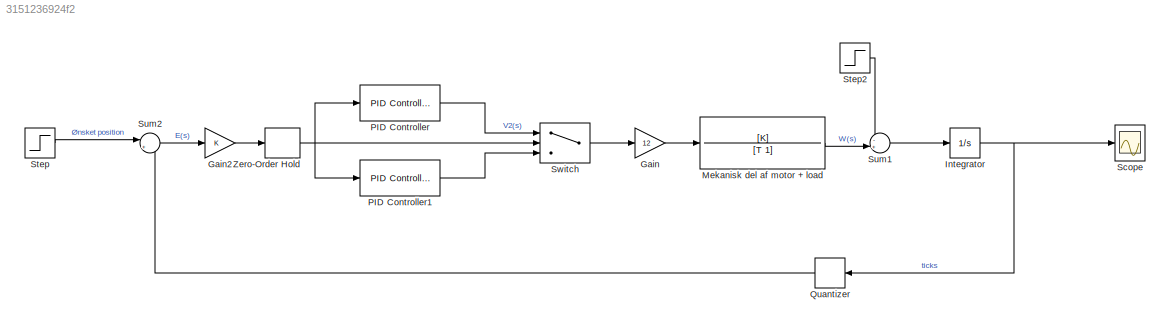
MODEL slx_3151236924f2
KIND model
CONFIG AbsTol = auto
CONFIG FixedStep = auto
CONFIG MaxStep = auto
CONFIG MinStep = auto
CONFIG RelTol = 1e-3
CONFIG SampleTimeConstraint = Unconstrained
CONFIG Solver = VariableStepAuto
CONFIG SolverMode = Auto
CONFIG SolverName = VariableStepAuto
CONFIG StartTime = 0.0
CONFIG StopTime = 3.5
BLOCK [Gain] Gain
  Gain = 12
  OutDataTypeStr = Inherit: Inherit via internal rule
  ParamDataTypeStr = Inherit: Inherit via internal rule
  SaturateOnIntegerOverflow = off
BLOCK [Gain] Gain2
  OutDataTypeStr = Inherit: Inherit via internal rule
  ParamDataTypeStr = Inherit: Inherit via internal rule
  SaturateOnIntegerOverflow = off
BLOCK [Integrator] Integrator
  Ports = [1, 1]
BLOCK [TransferFcn] Mekanisk del af motor + load 
  Denominator = [T 1]
  Numerator = [K]
BLOCK [Reference] PID Controller  REF=simulink/Continuous/PID Controller
  Ports = [1, 1]
  SourceBlock = simulink/Continuous/PID Controller
  SourceType = PID 1dof
BLOCK [Reference] PID Controller1  REF=simulink/Continuous/PID Controller
  Ports = [1, 1]
  SourceBlock = simulink/Continuous/PID Controller
  SourceType = PID 1dof
BLOCK [Quantizer] Quantizer
  QuantizationInterval = 1
BLOCK [Scope] Scope
  Ports = [1]
  ScopeSpecificationString = Simulink.scopes.TimeScopeBlockCfg('CurrentConfiguration', extmgr.ConfigurationSet(extmgr.Configuration('Core','General UI',true,'FigureColor',[1 1 1]),extmgr.Configuration('Core','Source UI',true),extmgr.Configuration('Sources','WiredSimulink',true),extmgr.Configuration('Visuals','Time Domain',true,'SerializedDisplays',{struct('MinYLimReal','0','MaxYLimReal','600','YLabelReal','','MinYLimMag','0.0...<+1538ch>
BLOCK [Step] Step 
  After = 540
  SampleTime = 0
  Time = 0
BLOCK [Step] Step2
  After = 0
  SampleTime = 0
  Time = 5
BLOCK [Sum] Sum1
  IconShape = round
  InputSameDT = off
  Inputs = -+|
  OutDataTypeStr = Inherit: Inherit via internal rule
  Ports = [2, 1]
  SaturateOnIntegerOverflow = off
BLOCK [Sum] Sum2
  IconShape = round
  InputSameDT = off
  Inputs = |+-
  OutDataTypeStr = Inherit: Inherit via internal rule
  Ports = [2, 1]
  SaturateOnIntegerOverflow = off
BLOCK [Switch] Switch
  Criteria = u2 > Threshold
  InputSameDT = off
  SaturateOnIntegerOverflow = off
BLOCK [ZeroOrderHold] Zero-Order Hold
  SampleTime = 0.005
LINE Gain2:1 -> Zero-Order Hold:1
LINE Gain:1 -> Mekanisk del af motor + load :1
NET Integrator:1 -> Quantizer:1, Scope:1
LINE Mekanisk del af motor + load :1 -> Sum1:2
LINE PID Controller1:1 -> Switch:3
LINE PID Controller:1 -> Switch:1
LINE Quantizer:1 -> Sum2:2
LINE Step :1 -> Sum2:1
LINE Step2:1 -> Sum1:1
LINE Sum1:1 -> Integrator:1
LINE Sum2:1 -> Gain2:1
LINE Switch:1 -> Gain:1
NET Zero-Order Hold:1 -> PID Controller1:1, PID Controller:1, Switch:2
note: NET lines group one-source signal fan-out (src -> all destinations, sorted); 1:1 wires keep LINE
